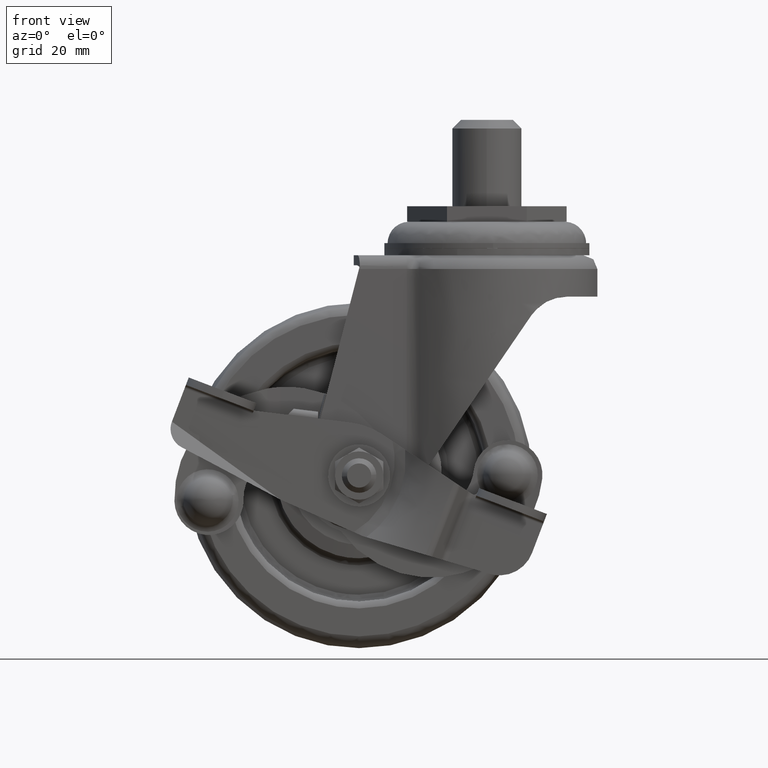
[diagram: clean part render]
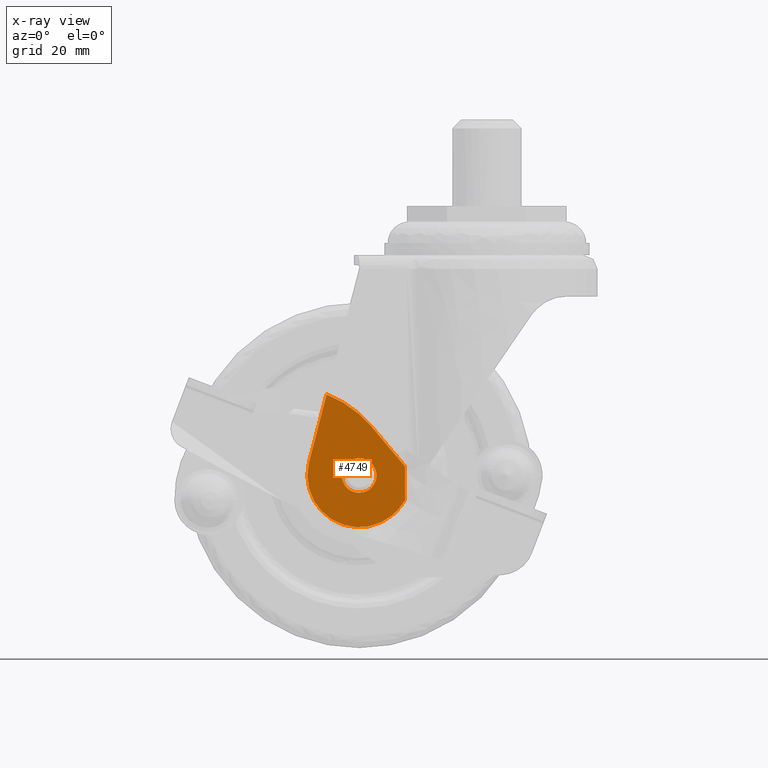
[diagram: x-ray — body ghosted, one internal face saturated and labeled with its STEP entity id]
A machine part, front view, then the same camera in x-ray: the body is ghosted and one INTERNAL B-rep face — a face not visible from any outside direction — is saturated and labeled: STEP entity #4749.
In plain terms, the highlighted face is a freeform B-spline surface patch.
Its self-contained STEP definition (entity closure, byte-faithful):
#23=CARTESIAN_POINT('',(-31.999344659909870,-23.699999999999999,-73.805853183125564));
#24=VERTEX_POINT('',#23);
#25=CARTESIAN_POINT('',(-37.0,-23.699999999999999,-68.489999999999995));
#26=VERTEX_POINT('',#25);
#27=CARTESIAN_POINT('',(-31.999344659909859,-23.699999999999999,-73.805853183125549));
#28=CARTESIAN_POINT('',(-31.989999999999998,-23.699999999999999,-73.653069344153977));
#29=CARTESIAN_POINT('',(-31.989999999999998,-23.699999999999999,-73.500000000000000));
#30=CARTESIAN_POINT('',(-31.989999999999991,-23.700000000000003,-68.489999999999995));
#31=CARTESIAN_POINT('',(-37.0,-23.699999999999999,-68.489999999999995));
#39=(BOUNDED_CURVE()B_SPLINE_CURVE(2,(#27,#28,#29,#30,#31),.UNSPECIFIED.,.F.,.U.)B_SPLINE_CURVE_WITH_KNOTS((3,2,3),(0.239332962240038,0.250000000000000,0.500000000000000),.UNSPECIFIED.)CURVE()GEOMETRIC_REPRESENTATION_ITEM()RATIONAL_B_SPLINE_CURVE((0.976072041669065,0.987502787901121,1.0,0.707106781186548,1.0))REPRESENTATION_ITEM(''));
#40=EDGE_CURVE('',#24,#26,#39,.T.);
#81=CARTESIAN_POINT('',(-42.000655340090127,-23.699999999999999,-73.194146816874436));
#82=VERTEX_POINT('',#81);
#88=CARTESIAN_POINT('',(-37.0,-23.699999999999999,-68.489999999999995));
#89=CARTESIAN_POINT('',(-41.712937395144728,-23.699999999999996,-68.490000000000009));
#90=CARTESIAN_POINT('',(-42.000655340090120,-23.699999999999992,-73.194146816874436));
#98=(BOUNDED_CURVE()B_SPLINE_CURVE(2,(#88,#89,#90),.UNSPECIFIED.,.F.,.U.)B_SPLINE_CURVE_WITH_KNOTS((3,3),(0.500000000000000,0.739332962240038),.UNSPECIFIED.)CURVE()GEOMETRIC_REPRESENTATION_ITEM()RATIONAL_B_SPLINE_CURVE((1.0,0.719603993285427,0.976072041669066))REPRESENTATION_ITEM(''));
#99=EDGE_CURVE('',#26,#82,#98,.T.);
#122=CARTESIAN_POINT('',(-37.0,-23.699999999999999,-78.509999999999991));
#123=VERTEX_POINT('',#122);
#124=CARTESIAN_POINT('',(-37.0,-23.699999999999999,-78.509999999999991));
#125=CARTESIAN_POINT('',(-32.287062604855279,-23.700000000000003,-78.509999999999991));
#126=CARTESIAN_POINT('',(-31.999344659909866,-23.700000000000006,-73.805853183125564));
#134=(BOUNDED_CURVE()B_SPLINE_CURVE(2,(#124,#125,#126),.UNSPECIFIED.,.F.,.U.)B_SPLINE_CURVE_WITH_KNOTS((3,3),(0.0,0.239332962240039),.UNSPECIFIED.)CURVE()GEOMETRIC_REPRESENTATION_ITEM()RATIONAL_B_SPLINE_CURVE((1.0,0.719603993285426,0.976072041669066))REPRESENTATION_ITEM(''));
#135=EDGE_CURVE('',#123,#24,#134,.T.);
#137=CARTESIAN_POINT('',(-42.000655340090134,-23.700000000000003,-73.194146816874451));
#138=CARTESIAN_POINT('',(-42.009999999999998,-23.700000000000003,-73.346930655846037));
#139=CARTESIAN_POINT('',(-42.009999999999998,-23.699999999999999,-73.500000000000000));
#140=CARTESIAN_POINT('',(-42.009999999999991,-23.700000000000003,-78.510000000000005));
#141=CARTESIAN_POINT('',(-37.0,-23.699999999999999,-78.509999999999991));
#149=(BOUNDED_CURVE()B_SPLINE_CURVE(2,(#137,#138,#139,#140,#141),.UNSPECIFIED.,.F.,.U.)B_SPLINE_CURVE_WITH_KNOTS((3,2,3),(0.739332962240039,0.750000000000000,1.0),.UNSPECIFIED.)CURVE()GEOMETRIC_REPRESENTATION_ITEM()RATIONAL_B_SPLINE_CURVE((0.976072041669067,0.987502787901121,1.0,0.707106781186548,1.0))REPRESENTATION_ITEM(''));
#150=EDGE_CURVE('',#82,#123,#149,.T.);
#494=CARTESIAN_POINT('',(-51.561368064315900,-23.699999999999999,-69.899088990891414));
#495=VERTEX_POINT('',#494);
#501=CARTESIAN_POINT('',(-24.617362340051798,-23.699999999999999,-81.965830598115005));
#502=VERTEX_POINT('',#501);
#503=CARTESIAN_POINT('',(-51.561368064315900,-23.699999999999999,-69.899088990891414));
#504=CARTESIAN_POINT('',(-51.861991480481286,-23.699999999999960,-71.113219716269242));
#505=CARTESIAN_POINT('',(-52.105203758907123,-23.700000000000049,-73.181602719774673));
#506=CARTESIAN_POINT('',(-51.852129557572312,-23.699999999999989,-76.007553427970407));
#507=CARTESIAN_POINT('',(-51.198850228008489,-23.699999999999989,-78.598956387731633));
#508=CARTESIAN_POINT('',(-50.145500406484338,-23.699999999999971,-80.884240205566584));
#509=CARTESIAN_POINT('',(-48.686589960780751,-23.700000000000038,-82.989585992667429));
#510=CARTESIAN_POINT('',(-46.970801754454371,-23.699999999999950,-84.821436825543501));
#511=CARTESIAN_POINT('',(-44.899299743328598,-23.700000000000038,-86.341761919552582));
#512=CARTESIAN_POINT('',(-42.504573839419422,-23.700000000000440,-87.525576233023642));
#513=CARTESIAN_POINT('',(-40.362796438329433,-23.699999999999701,-88.178702493925144));
#514=CARTESIAN_POINT('',(-38.098242280993283,-23.700000000000330,-88.506366858016946));
#515=CARTESIAN_POINT('',(-36.025802758756377,-23.699999999999768,-88.522459665327148));
#516=CARTESIAN_POINT('',(-33.488169742299590,-23.699999999999608,-88.167394230208259));
#517=CARTESIAN_POINT('',(-30.942519790156510,-23.700000000000198,-87.327993671443195));
#518=CARTESIAN_POINT('',(-28.423631218348039,-23.699999999999712,-85.904667497516158));
#519=CARTESIAN_POINT('',(-26.324174440335241,-23.700000000001520,-84.158522653644113));
#520=CARTESIAN_POINT('',(-25.139044004254341,-23.699999999997239,-82.729041815717920));
#521=CARTESIAN_POINT('',(-24.617362340051798,-23.699999999999999,-81.965830598115005));
#522=B_SPLINE_CURVE_WITH_KNOTS('',3,(#503,#504,#505,#506,#507,#508,#509,#510,#511,#512,#513,#514,#515,#516,#517,#518,#519,#520,#521),.UNSPECIFIED.,.F.,.U.,(4,1,1,1,1,1,1,1,1,1,1,1,1,1,1,1,4),(0.000000187726087,3.752278164757712,6.199475463246486,8.483528655364694,11.746458286500729,13.704219945603979,16.151411599074759,19.251157473971428,21.371929472102579,24.145404191751329,25.940062667103110,28.224061566500350,30.344971985352220,33.607901760975842,36.218219543327372,38.991735623855263,41.765133513101347),.UNSPECIFIED.);
#523=EDGE_CURVE('',#495,#502,#522,.T.);
#4594=CARTESIAN_POINT('',(-23.704640895824600,-23.699999999999999,-80.630828816854901));
#4595=VERTEX_POINT('',#4594);
#4622=CARTESIAN_POINT('',(-23.704640895824600,-23.699999999999999,-80.630828816854901));
#4623=CARTESIAN_POINT('',(-24.617362340051798,-23.699999999999999,-81.965830598115005));
#4624=QUASI_UNIFORM_CURVE('',1,(#4622,#4623),.UNSPECIFIED.,.F.,.U.);
#4625=EDGE_CURVE('',#4595,#502,#4624,.T.);
#4642=CARTESIAN_POINT('',(-46.423988994258693,-23.699999999999999,-50.025158977790397));
#4643=VERTEX_POINT('',#4642);
#4649=CARTESIAN_POINT('',(-51.561368064315900,-23.699999999999999,-69.899088990891414));
#4650=CARTESIAN_POINT('',(-46.423988994258693,-23.699999999999999,-50.025158977790397));
#4651=QUASI_UNIFORM_CURVE('',1,(#4649,#4650),.UNSPECIFIED.,.F.,.U.);
#4652=EDGE_CURVE('',#495,#4643,#4651,.T.);
#4706=CARTESIAN_POINT('',(-53.403148739435792,-23.699999999999999,-48.104033087932763));
#4707=CARTESIAN_POINT('',(-53.403148739435792,-23.699999999999999,-90.407266168473683));
#4708=CARTESIAN_POINT('',(-22.291772465383751,-23.699999999999999,-48.104033087932763));
#4709=CARTESIAN_POINT('',(-22.291772465383751,-23.699999999999999,-90.407266168473683));
#4710=B_SPLINE_SURFACE_WITH_KNOTS('',1,1,((#4706,#4708),(#4707,#4709)),.UNSPECIFIED.,.F.,.F.,.U.,(2,2),(2,2),(0.0,42.303233080540920),(0.0,31.111376274052041),.UNSPECIFIED.);
#4711=ORIENTED_EDGE('',*,*,#4652,.T.);
#4712=CARTESIAN_POINT('',(-33.418502674500253,-23.699999999999999,-59.328153126983800));
#4713=VERTEX_POINT('',#4712);
#4714=CARTESIAN_POINT('',(-46.423988994258679,-23.699999999999999,-50.025158977790348));
#4715=CARTESIAN_POINT('',(-38.734811778003227,-23.699999999999999,-53.018033931160168));
#4716=CARTESIAN_POINT('',(-33.418502674500253,-23.699999999999999,-59.328153126983800));
#4724=(BOUNDED_CURVE()B_SPLINE_CURVE(2,(#4714,#4715,#4716),.UNSPECIFIED.,.F.,.U.)CURVE()GEOMETRIC_REPRESENTATION_ITEM()QUASI_UNIFORM_CURVE()RATIONAL_B_SPLINE_CURVE((1.0,0.968976713385758,1.0))REPRESENTATION_ITEM(''));
#4725=EDGE_CURVE('',#4643,#4713,#4724,.T.);
#4726=ORIENTED_EDGE('',*,*,#4725,.T.);
#4727=CARTESIAN_POINT('',(-23.704640895824600,-23.699999999999999,-70.857886346372794));
#4728=VERTEX_POINT('',#4727);
#4729=CARTESIAN_POINT('',(-33.418502674500253,-23.699999999999999,-59.328153126983800));
#4730=CARTESIAN_POINT('',(-23.704640895824600,-23.699999999999999,-70.857886346372794));
#4731=QUASI_UNIFORM_CURVE('',1,(#4729,#4730),.UNSPECIFIED.,.F.,.U.);
#4732=EDGE_CURVE('',#4713,#4728,#4731,.T.);
#4733=ORIENTED_EDGE('',*,*,#4732,.T.);
#4734=CARTESIAN_POINT('',(-23.704640895824600,-23.699999999999999,-80.630828816854901));
#4735=CARTESIAN_POINT('',(-23.704640895824600,-23.699999999999999,-70.857886346372794));
#4736=QUASI_UNIFORM_CURVE('',1,(#4734,#4735),.UNSPECIFIED.,.F.,.U.);
#4737=EDGE_CURVE('',#4595,#4728,#4736,.T.);
#4738=ORIENTED_EDGE('',*,*,#4737,.F.);
#4739=ORIENTED_EDGE('',*,*,#4625,.T.);
#4740=ORIENTED_EDGE('',*,*,#523,.F.);
#4741=EDGE_LOOP('',(#4711,#4726,#4733,#4738,#4739,#4740));
#4742=FACE_OUTER_BOUND('',#4741,.T.);
#4743=ORIENTED_EDGE('',*,*,#99,.T.);
#4744=ORIENTED_EDGE('',*,*,#150,.T.);
#4745=ORIENTED_EDGE('',*,*,#135,.T.);
#4746=ORIENTED_EDGE('',*,*,#40,.T.);
#4747=EDGE_LOOP('',(#4743,#4744,#4745,#4746));
#4748=FACE_BOUND('',#4747,.T.);
#4749=ADVANCED_FACE('',(#4742,#4748),#4710,.F.);